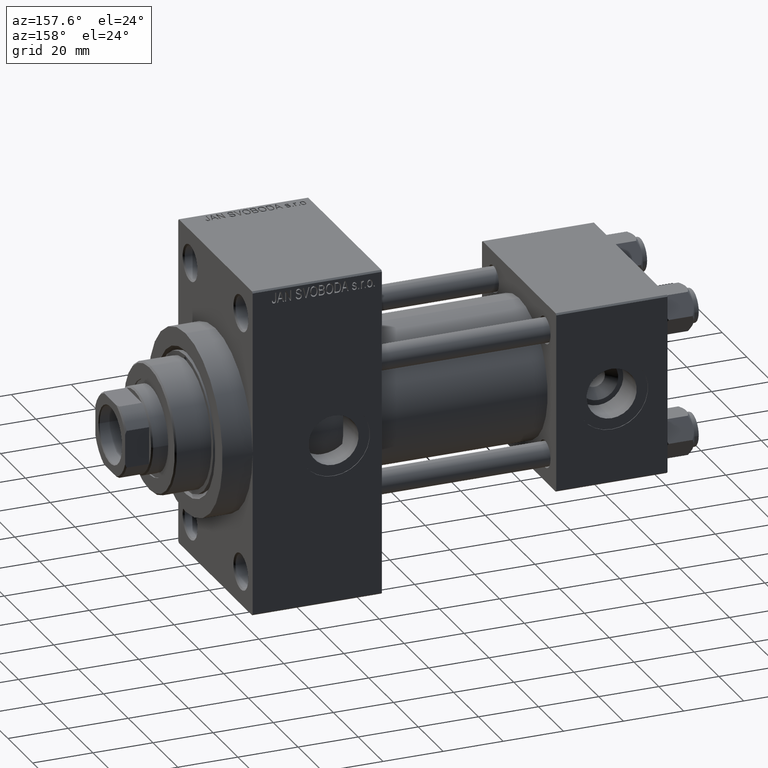
[diagram: clean part render]
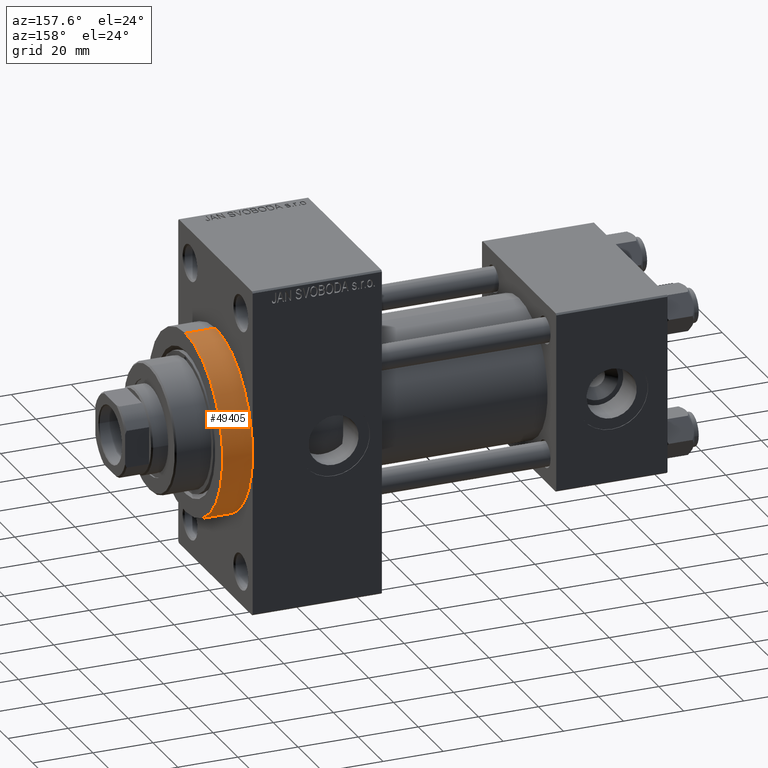
[diagram: same view with one face highlighted and labeled with its STEP entity id]
A machine part, auxiliary view. The second image highlights one B-rep face of the part: STEP entity #49405.
In plain terms, the highlighted cylindrical surface (partial cylindrical patch) has radius 30 mm, axis along (-1, -0, -0).
Its self-contained STEP definition (entity closure, byte-faithful):
#777 = EDGE_CURVE ( 'NONE', #31212, #18310, #28231, .T. ) ;
#1197 = CARTESIAN_POINT ( 'NONE',  ( 148.0000000000000284, 0.000000000000000000, 30.00000000000000000 ) ) ;
#2060 = CYLINDRICAL_SURFACE ( 'NONE', #46999, 30.00000000000000000 ) ;
#2581 = LINE ( 'NONE', #17633, #10851 ) ;
#2681 = ORIENTED_EDGE ( 'NONE', *, *, #10980, .F. ) ;
#2726 = LINE ( 'NONE', #18024, #49389 ) ;
#5220 = AXIS2_PLACEMENT_3D ( 'NONE', #33732, #26458, #25967 ) ;
#6802 = CARTESIAN_POINT ( 'NONE',  ( 148.0000000000000284, 3.673940397442059178E-15, -30.00000000000000000 ) ) ;
#7619 = CIRCLE ( 'NONE', #5220, 30.00000000000000000 ) ;
#8478 = VERTEX_POINT ( 'NONE', #33058 ) ;
#9051 = EDGE_CURVE ( 'NONE', #8478, #19309, #7619, .T. ) ;
#10851 = VECTOR ( 'NONE', #13880, 1000.000000000000000 ) ;
#10980 = EDGE_CURVE ( 'NONE', #18310, #19309, #2581, .T. ) ;
#13869 = EDGE_CURVE ( 'NONE', #31212, #30392, #2726, .T. ) ;
#13880 = DIRECTION ( 'NONE',  ( -1.000000000000000000, -0.000000000000000000, -0.000000000000000000 ) ) ;
#14133 = DIRECTION ( 'NONE',  ( 0.000000000000000000, 0.000000000000000000, -1.000000000000000000 ) ) ;
#15705 = ORIENTED_EDGE ( 'NONE', *, *, #777, .F. ) ;
#17633 = CARTESIAN_POINT ( 'NONE',  ( 148.0000000000000284, 0.000000000000000000, 30.00000000000000000 ) ) ;
#18024 = CARTESIAN_POINT ( 'NONE',  ( 148.0000000000000284, 3.673940397442059178E-15, -30.00000000000000000 ) ) ;
#18310 = VERTEX_POINT ( 'NONE', #1197 ) ;
#18329 = CARTESIAN_POINT ( 'NONE',  ( 148.0000000000000284, 0.000000000000000000, 0.000000000000000000 ) ) ;
#19309 = VERTEX_POINT ( 'NONE', #30984 ) ;
#20219 = AXIS2_PLACEMENT_3D ( 'NONE', #33265, #41299, #36793 ) ;
#20861 = ORIENTED_EDGE ( 'NONE', *, *, #9051, .T. ) ;
#24018 = CARTESIAN_POINT ( 'NONE',  ( 138.0000000000000000, 3.673940397442059178E-15, -30.00000000000000000 ) ) ;
#25620 = DIRECTION ( 'NONE',  ( -1.000000000000000000, -0.000000000000000000, -0.000000000000000000 ) ) ;
#25967 = DIRECTION ( 'NONE',  ( 0.000000000000000000, 0.000000000000000000, -1.000000000000000000 ) ) ;
#26331 = AXIS2_PLACEMENT_3D ( 'NONE', #33178, #48477, #14133 ) ;
#26458 = DIRECTION ( 'NONE',  ( 1.000000000000000000, 0.000000000000000000, 0.000000000000000000 ) ) ;
#27118 = CIRCLE ( 'NONE', #26331, 30.00000000000000000 ) ;
#28231 = CIRCLE ( 'NONE', #20219, 30.00000000000000000 ) ;
#30392 = VERTEX_POINT ( 'NONE', #24018 ) ;
#30984 = CARTESIAN_POINT ( 'NONE',  ( 138.0000000000000000, 0.000000000000000000, 30.00000000000000000 ) ) ;
#31212 = VERTEX_POINT ( 'NONE', #6802 ) ;
#33058 = CARTESIAN_POINT ( 'NONE',  ( 138.0000000000000000, 30.00000000000000000, 0.000000000000000000 ) ) ;
#33178 = CARTESIAN_POINT ( 'NONE',  ( 138.0000000000000000, 0.000000000000000000, 0.000000000000000000 ) ) ;
#33265 = CARTESIAN_POINT ( 'NONE',  ( 148.0000000000000284, 0.000000000000000000, 0.000000000000000000 ) ) ;
#33732 = CARTESIAN_POINT ( 'NONE',  ( 138.0000000000000000, 0.000000000000000000, 0.000000000000000000 ) ) ;
#35467 = ORIENTED_EDGE ( 'NONE', *, *, #13869, .T. ) ;
#35738 = EDGE_LOOP ( 'NONE', ( #15705, #35467, #40968, #20861, #2681 ) ) ;
#36414 = FACE_OUTER_BOUND ( 'NONE', #35738, .T. ) ;
#36793 = DIRECTION ( 'NONE',  ( 0.000000000000000000, 0.000000000000000000, -1.000000000000000000 ) ) ;
#36906 = DIRECTION ( 'NONE',  ( 0.000000000000000000, 0.000000000000000000, 1.000000000000000000 ) ) ;
#37138 = EDGE_CURVE ( 'NONE', #30392, #8478, #27118, .T. ) ;
#37820 = DIRECTION ( 'NONE',  ( -1.000000000000000000, -0.000000000000000000, -0.000000000000000000 ) ) ;
#40968 = ORIENTED_EDGE ( 'NONE', *, *, #37138, .T. ) ;
#41299 = DIRECTION ( 'NONE',  ( 1.000000000000000000, 0.000000000000000000, 0.000000000000000000 ) ) ;
#46999 = AXIS2_PLACEMENT_3D ( 'NONE', #18329, #25620, #36906 ) ;
#48477 = DIRECTION ( 'NONE',  ( 1.000000000000000000, 0.000000000000000000, 0.000000000000000000 ) ) ;
#49389 = VECTOR ( 'NONE', #37820, 1000.000000000000000 ) ;
#49405 = ADVANCED_FACE ( 'NONE', ( #36414 ), #2060, .T. ) ;